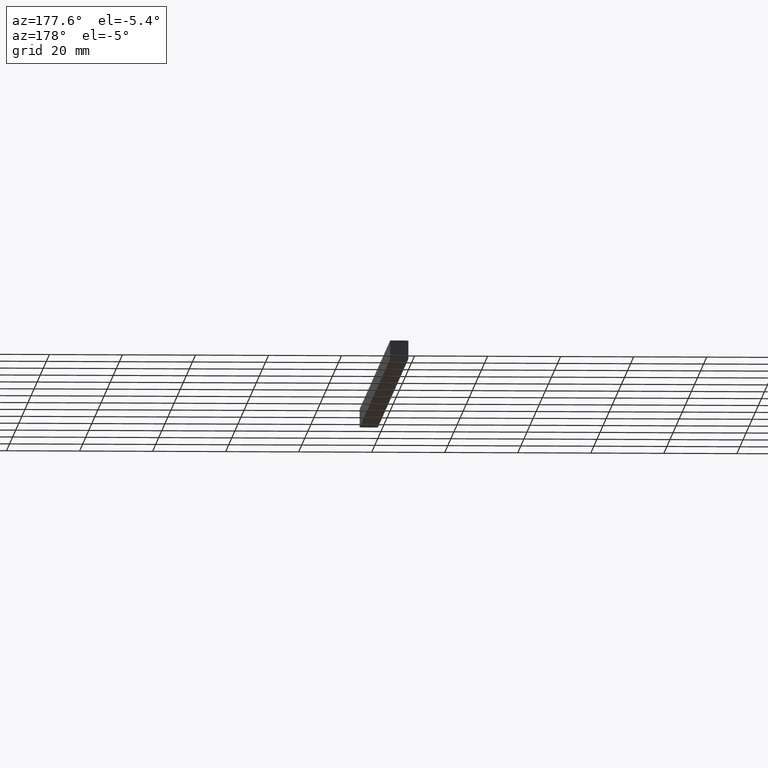
[diagram: clean part render]
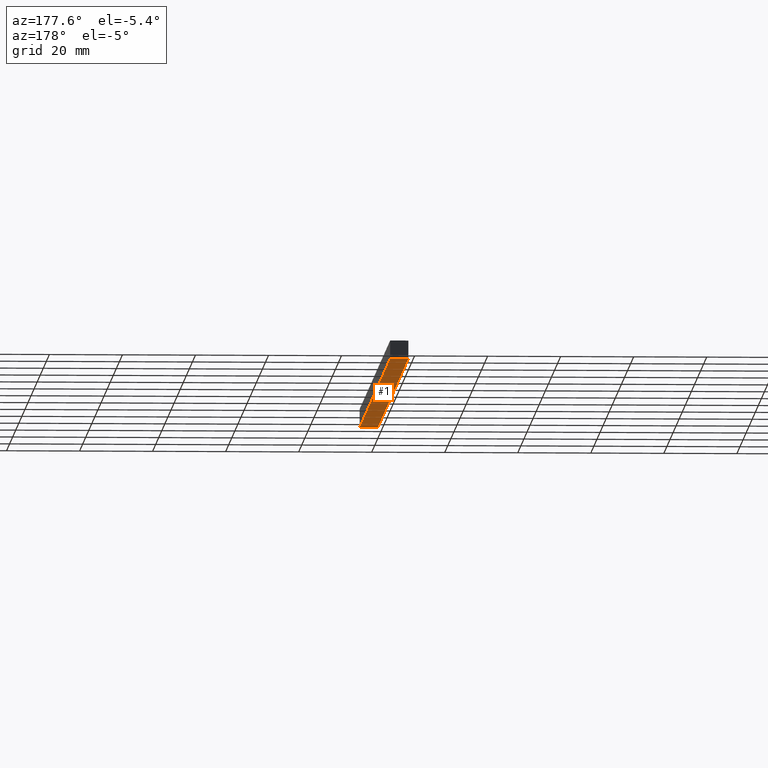
[diagram: same view with one face highlighted and labeled with its STEP entity id]
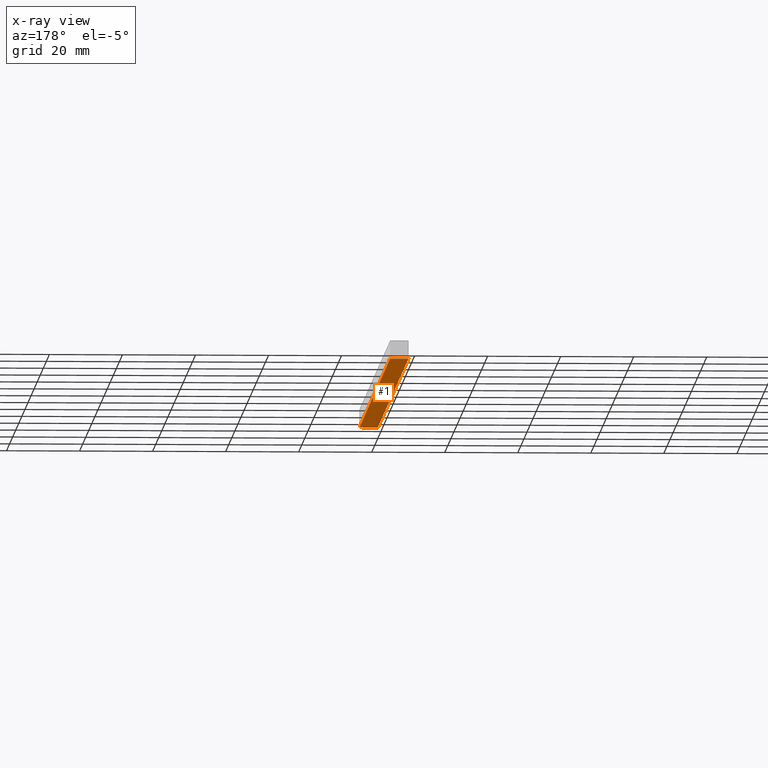
[diagram: x-ray of the same camera — body ghosted, the highlighted face saturated]
A machine part, auxiliary view. The second image highlights one B-rep face of the part: STEP entity #1.
The next image is the same camera in x-ray: the body ghosted, the highlighted face saturated — about 0% of this face is hidden behind the body in this view.
In plain terms, the highlighted planar face has unit normal (0, 0, 1).
Its self-contained STEP definition (entity closure, byte-faithful):
#1 = ADVANCED_FACE ( 'NONE', ( #51 ), #197, .F. ) ;
#3 = LINE ( 'NONE', #97, #109 ) ;
#5 = CARTESIAN_POINT ( 'NONE',  ( 5.000000000000000000, 0.0000000000000000000, 0.0000000000000000000 ) ) ;
#8 = VECTOR ( 'NONE', #236, 1000.000000000000000 ) ;
#9 = CARTESIAN_POINT ( 'NONE',  ( 0.0000000000000000000, 200.0000000000000000, 0.0000000000000000000 ) ) ;
#12 = VECTOR ( 'NONE', #64, 1000.000000000000000 ) ;
#20 = LINE ( 'NONE', #121, #12 ) ;
#21 = CARTESIAN_POINT ( 'NONE',  ( 5.000000000000000000, 1000.000000000000000, 0.0000000000000000000 ) ) ;
#38 = CARTESIAN_POINT ( 'NONE',  ( 0.0000000000000000000, 0.0000000000000000000, 0.0000000000000000000 ) ) ;
#41 = EDGE_LOOP ( 'NONE', ( #49, #144, #148, #84 ) ) ;
#46 = DIRECTION ( 'NONE',  ( 1.000000000000000000, 0.0000000000000000000, 0.0000000000000000000 ) ) ;
#49 = ORIENTED_EDGE ( 'NONE', *, *, #205, .T. ) ;
#50 = LINE ( 'NONE', #5, #8 ) ;
#51 = FACE_OUTER_BOUND ( 'NONE', #41, .T. ) ;
#64 = DIRECTION ( 'NONE',  ( 0.0000000000000000000, -1.000000000000000000, 0.0000000000000000000 ) ) ;
#66 = AXIS2_PLACEMENT_3D ( 'NONE', #99, #86, #46 ) ;
#79 = DIRECTION ( 'NONE',  ( -1.000000000000000000, 0.0000000000000000000, 0.0000000000000000000 ) ) ;
#84 = ORIENTED_EDGE ( 'NONE', *, *, #137, .T. ) ;
#86 = DIRECTION ( 'NONE',  ( 0.0000000000000000000, 0.0000000000000000000, 1.000000000000000000 ) ) ;
#97 = CARTESIAN_POINT ( 'NONE',  ( 5.000000000000000000, 200.0000000000000000, 0.0000000000000000000 ) ) ;
#99 = CARTESIAN_POINT ( 'NONE',  ( 5.000000000000000000, 1000.000000000000000, 0.0000000000000000000 ) ) ;
#109 = VECTOR ( 'NONE', #79, 1000.000000000000000 ) ;
#118 = LINE ( 'NONE', #21, #166 ) ;
#121 = CARTESIAN_POINT ( 'NONE',  ( 0.0000000000000000000, 1000.000000000000000, 0.0000000000000000000 ) ) ;
#133 = CARTESIAN_POINT ( 'NONE',  ( 5.000000000000000000, 0.0000000000000000000, 0.0000000000000000000 ) ) ;
#137 = EDGE_CURVE ( 'NONE', #204, #200, #118, .T. ) ;
#144 = ORIENTED_EDGE ( 'NONE', *, *, #188, .F. ) ;
#148 = ORIENTED_EDGE ( 'NONE', *, *, #178, .F. ) ;
#155 = DIRECTION ( 'NONE',  ( 0.0000000000000000000, -1.000000000000000000, 0.0000000000000000000 ) ) ;
#166 = VECTOR ( 'NONE', #155, 1000.000000000000000 ) ;
#169 = VERTEX_POINT ( 'NONE', #38 ) ;
#178 = EDGE_CURVE ( 'NONE', #204, #224, #3, .T. ) ;
#188 = EDGE_CURVE ( 'NONE', #224, #169, #20, .T. ) ;
#197 = PLANE ( 'NONE',  #66 ) ;
#200 = VERTEX_POINT ( 'NONE', #133 ) ;
#204 = VERTEX_POINT ( 'NONE', #235 ) ;
#205 = EDGE_CURVE ( 'NONE', #200, #169, #50, .T. ) ;
#224 = VERTEX_POINT ( 'NONE', #9 ) ;
#235 = CARTESIAN_POINT ( 'NONE',  ( 5.000000000000000000, 200.0000000000000000, 0.0000000000000000000 ) ) ;
#236 = DIRECTION ( 'NONE',  ( -1.000000000000000000, 0.0000000000000000000, 0.0000000000000000000 ) ) ;